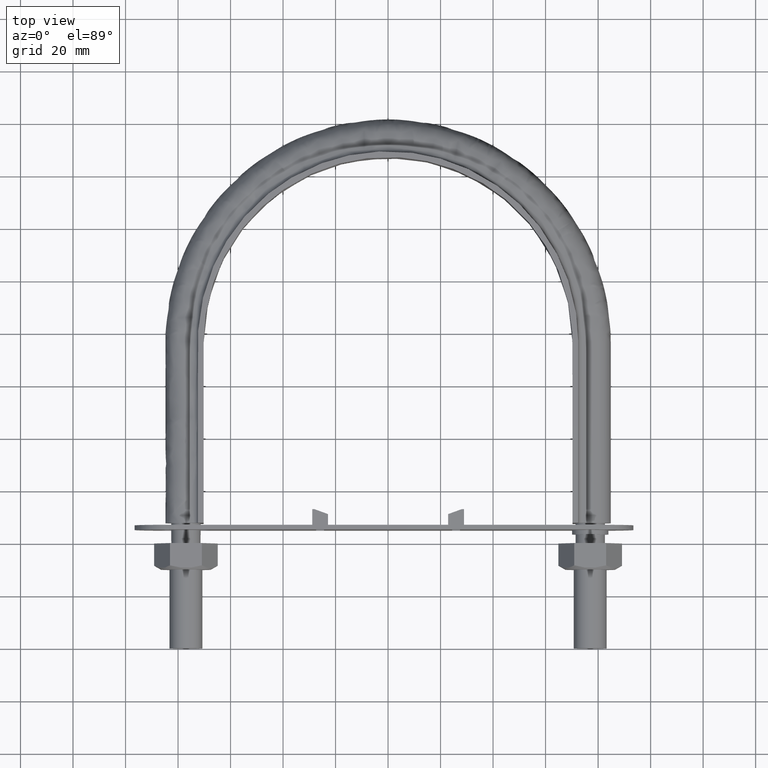
[diagram: clean part render]
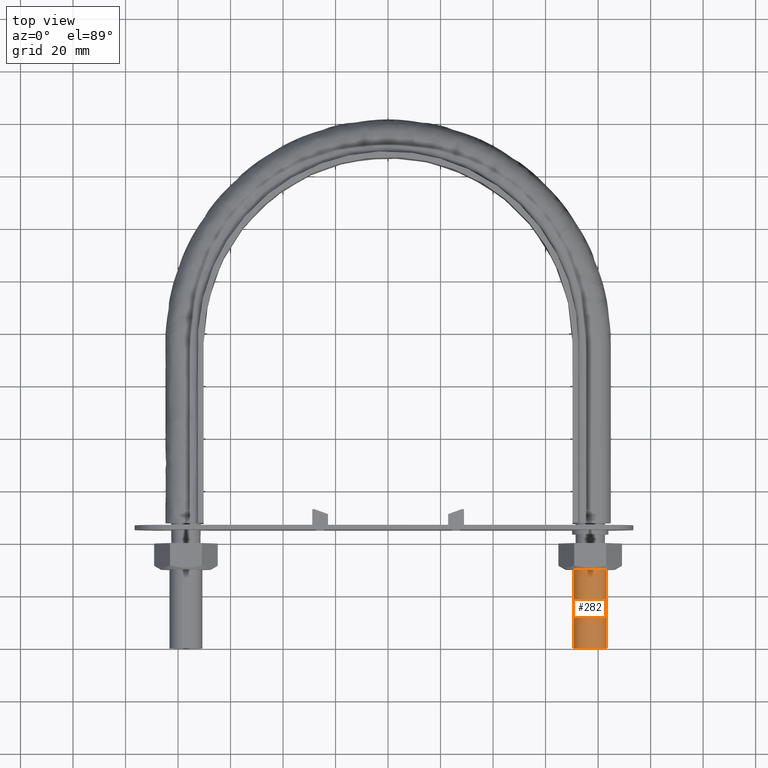
[diagram: same view with one face highlighted and labeled with its STEP entity id]
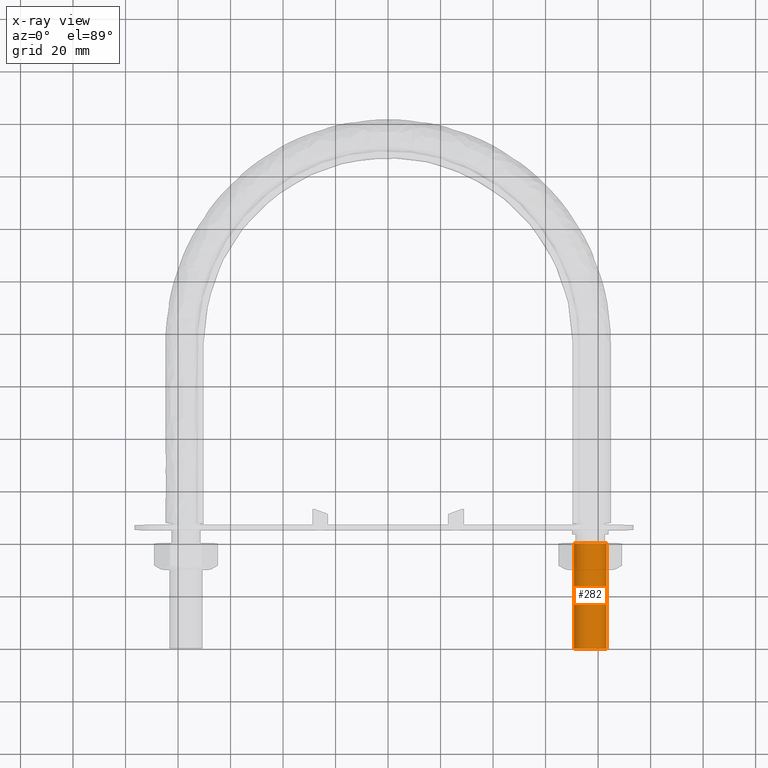
[diagram: x-ray of the same camera — body ghosted, the highlighted face saturated]
A machine part, top view. The second image highlights one B-rep face of the part: STEP entity #282.
The next image is the same camera in x-ray: the body ghosted, the highlighted face saturated — about 0% of this face is hidden behind the body in this view.
In plain terms, the highlighted cylindrical surface (bore or boss wall) has radius 6.25 mm, axis along (0, 1, -0).
Its self-contained STEP definition (entity closure, byte-faithful):
#282 = ADVANCED_FACE( '', ( #384, #385 ), #386, .T. );
#384 = FACE_OUTER_BOUND( '', #1417, .T. );
#385 = FACE_OUTER_BOUND( '', #1418, .T. );
#386 = CYLINDRICAL_SURFACE( '', #1419, 6.25000000000001 );
#1417 = EDGE_LOOP( '', ( #1685 ) );
#1418 = EDGE_LOOP( '', ( #1686 ) );
#1419 = AXIS2_PLACEMENT_3D( '', #1687, #1688, #1689 );
#1685 = ORIENTED_EDGE( '', *, *, #2176, .T. );
#1686 = ORIENTED_EDGE( '', *, *, #2174, .F. );
#1687 = CARTESIAN_POINT( '', ( 77.0000000000000, 40.0000000000000, -1.22460635382238E-014 ) );
#1688 = DIRECTION( '', ( 2.44921270764476E-016, 1.00000000000000, -3.06151588455594E-016 ) );
#1689 = DIRECTION( '', ( 1.00000000000000, -2.44921270764475E-016, 0.000000000000000 ) );
#2174 = EDGE_CURVE( '', #2373, #2373, #2374, .T. );
#2176 = EDGE_CURVE( '', #2377, #2377, #2378, .T. );
#2373 = VERTEX_POINT( '', #2863 );
#2374 = CIRCLE( '', #2864, 6.25000000000001 );
#2377 = VERTEX_POINT( '', #2867 );
#2378 = CIRCLE( '', #2868, 6.25000000000001 );
#2863 = CARTESIAN_POINT( '', ( 83.2500000000000, -1.09602268667103E-014, 0.000000000000000 ) );
#2864 = AXIS2_PLACEMENT_3D( '', #3340, #3341, #3342 );
#2867 = CARTESIAN_POINT( '', ( 83.2500000000000, 40.0000000000000, -1.22460635382238E-014 ) );
#2868 = AXIS2_PLACEMENT_3D( '', #3346, #3347, #3348 );
#3340 = CARTESIAN_POINT( '', ( 77.0000000000000, -9.42946892443230E-015, 4.71701209382677E-046 ) );
#3341 = DIRECTION( '', ( -2.44921270764475E-016, -1.00000000000000, 3.06151588455594E-016 ) );
#3342 = DIRECTION( '', ( 1.00000000000000, -2.44921270764475E-016, -7.54721935012283E-047 ) );
#3346 = CARTESIAN_POINT( '', ( 77.0000000000000, 40.0000000000000, -1.22460635382238E-014 ) );
#3347 = DIRECTION( '', ( -2.44921270764475E-016, -1.00000000000000, 3.06151588455594E-016 ) );
#3348 = DIRECTION( '', ( 1.00000000000000, -2.44921270764475E-016, -7.54721935012283E-047 ) );